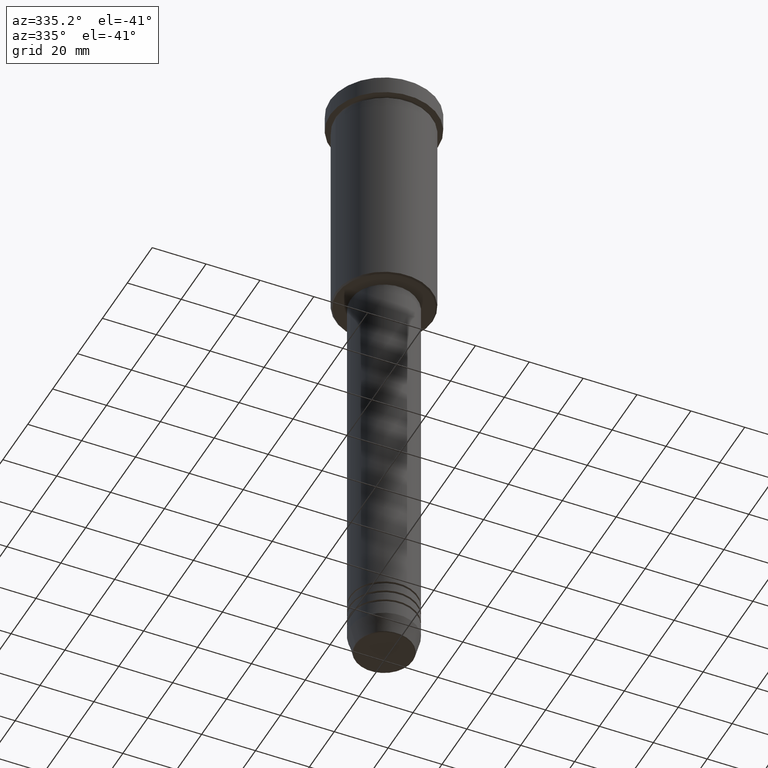
[diagram: clean part render]
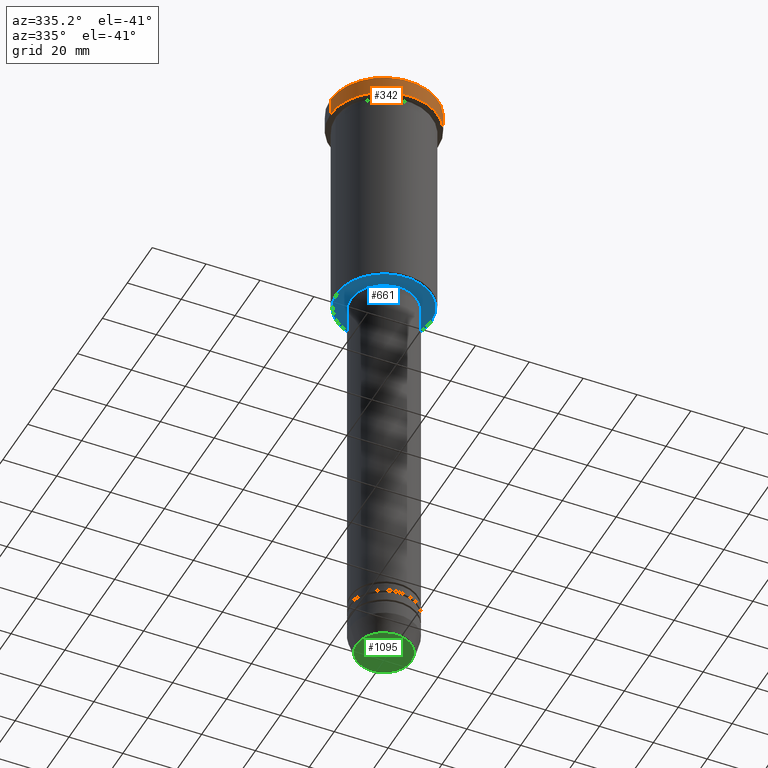
[diagram: same view with three faces highlighted in distinct colors, each labeled with its STEP entity id]
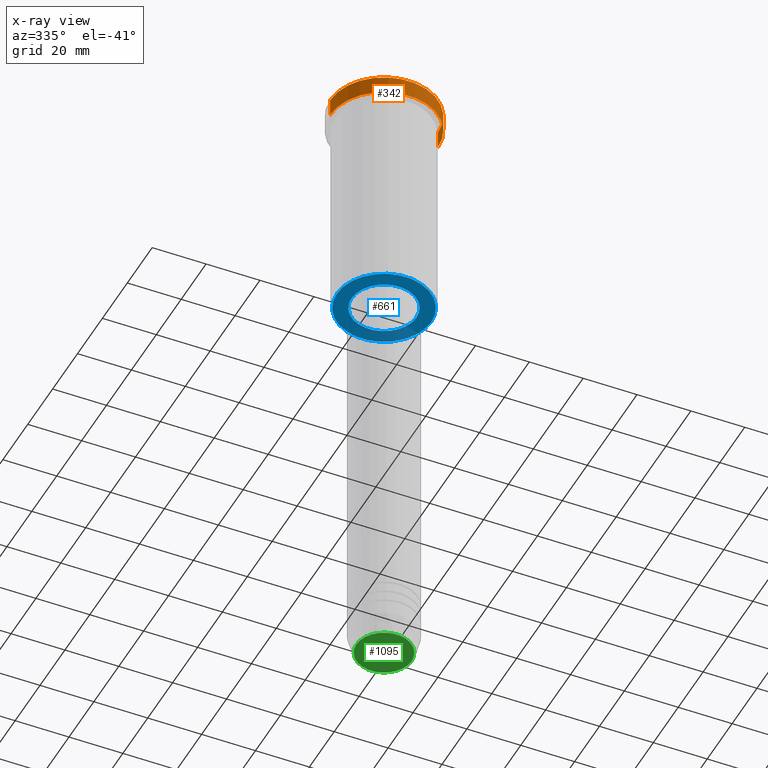
[diagram: x-ray of the same camera — body ghosted, the three highlighted faces saturated]
A machine part, auxiliary view with three faces highlighted in distinct colors.
The next image is the same camera in x-ray (body ghosted, the three faces saturated) — at least one of them is partly hidden behind the body in this view.
Their STEP definitions:

[orange] entity #342 — the highlighted cylindrical surface (partial cylindrical patch) has radius 20 mm, axis along (-0, -0, 1).
#9 = EDGE_CURVE ( 'NONE', #825, #329, #397, .T. ) ;
#28 = CARTESIAN_POINT ( 'NONE',  ( 0.000000000000000000, 0.000000000000000000, 0.000000000000000000 ) ) ;
#32 = EDGE_CURVE ( 'NONE', #276, #329, #197, .T. ) ;
#135 = DIRECTION ( 'NONE',  ( 0.000000000000000000, 0.000000000000000000, -1.000000000000000000 ) ) ;
#197 = CIRCLE ( 'NONE', #1007, 20.00000000000000000 ) ;
#276 = VERTEX_POINT ( 'NONE', #341 ) ;
#278 = CARTESIAN_POINT ( 'NONE',  ( -20.00000000000000000, 2.449293598294706513E-15, -0.4999999999999692468 ) ) ;
#296 = FACE_OUTER_BOUND ( 'NONE', #1050, .T. ) ;
#329 = VERTEX_POINT ( 'NONE', #278 ) ;
#341 = CARTESIAN_POINT ( 'NONE',  ( 20.00000000000000000, 0.000000000000000000, -0.4999999999999692468 ) ) ;
#342 = ADVANCED_FACE ( 'NONE', ( #296 ), #900, .T. ) ;
#350 = ORIENTED_EDGE ( 'NONE', *, *, #578, .T. ) ;
#362 = DIRECTION ( 'NONE',  ( 1.000000000000000000, 0.000000000000000000, 0.000000000000000000 ) ) ;
#378 = DIRECTION ( 'NONE',  ( 1.000000000000000000, 0.000000000000000000, 0.000000000000000000 ) ) ;
#396 = DIRECTION ( 'NONE',  ( -0.000000000000000000, -0.000000000000000000, 1.000000000000000000 ) ) ;
#397 = LINE ( 'NONE', #1111, #496 ) ;
#401 = CIRCLE ( 'NONE', #423, 20.00000000000000000 ) ;
#423 = AXIS2_PLACEMENT_3D ( 'NONE', #918, #651, #378 ) ;
#428 = EDGE_CURVE ( 'NONE', #584, #276, #1078, .T. ) ;
#496 = VECTOR ( 'NONE', #1024, 1000.000000000000000 ) ;
#543 = CARTESIAN_POINT ( 'NONE',  ( 20.00000000000000000, 0.000000000000000000, 0.000000000000000000 ) ) ;
#578 = EDGE_CURVE ( 'NONE', #825, #584, #401, .T. ) ;
#584 = VERTEX_POINT ( 'NONE', #749 ) ;
#624 = CARTESIAN_POINT ( 'NONE',  ( -20.00000000000000000, 2.449293598294706513E-15, -6.999999999999995559 ) ) ;
#651 = DIRECTION ( 'NONE',  ( -0.000000000000000000, -0.000000000000000000, 1.000000000000000000 ) ) ;
#670 = DIRECTION ( 'NONE',  ( 1.000000000000000000, 0.000000000000000000, 0.000000000000000000 ) ) ;
#749 = CARTESIAN_POINT ( 'NONE',  ( 20.00000000000000000, 0.000000000000000000, -6.999999999999995559 ) ) ;
#758 = CARTESIAN_POINT ( 'NONE',  ( 0.000000000000000000, 0.000000000000000000, -0.4999999999999692468 ) ) ;
#791 = ORIENTED_EDGE ( 'NONE', *, *, #32, .T. ) ;
#825 = VERTEX_POINT ( 'NONE', #624 ) ;
#900 = CYLINDRICAL_SURFACE ( 'NONE', #1183, 20.00000000000000000 ) ;
#904 = DIRECTION ( 'NONE',  ( -0.000000000000000000, -0.000000000000000000, 1.000000000000000000 ) ) ;
#918 = CARTESIAN_POINT ( 'NONE',  ( 0.000000000000000000, 0.000000000000000000, -6.999999999999995559 ) ) ;
#982 = ORIENTED_EDGE ( 'NONE', *, *, #9, .F. ) ;
#1007 = AXIS2_PLACEMENT_3D ( 'NONE', #758, #135, #670 ) ;
#1009 = VECTOR ( 'NONE', #904, 1000.000000000000000 ) ;
#1024 = DIRECTION ( 'NONE',  ( -0.000000000000000000, -0.000000000000000000, 1.000000000000000000 ) ) ;
#1050 = EDGE_LOOP ( 'NONE', ( #982, #350, #1082, #791 ) ) ;
#1078 = LINE ( 'NONE', #543, #1009 ) ;
#1082 = ORIENTED_EDGE ( 'NONE', *, *, #428, .T. ) ;
#1111 = CARTESIAN_POINT ( 'NONE',  ( -20.00000000000000000, 2.449293598294706513E-15, 0.000000000000000000 ) ) ;
#1183 = AXIS2_PLACEMENT_3D ( 'NONE', #28, #396, #362 ) ;

[blue] entity #661 — the highlighted planar face has unit normal (0, 0, -1).
#31 = DIRECTION ( 'NONE',  ( -0.000000000000000000, -0.000000000000000000, 1.000000000000000000 ) ) ;
#54 = EDGE_LOOP ( 'NONE', ( #238, #945 ) ) ;
#156 = VERTEX_POINT ( 'NONE', #320 ) ;
#160 = DIRECTION ( 'NONE',  ( 0.000000000000000000, 0.000000000000000000, -1.000000000000000000 ) ) ;
#195 = EDGE_CURVE ( 'NONE', #156, #199, #1139, .T. ) ;
#199 = VERTEX_POINT ( 'NONE', #686 ) ;
#238 = ORIENTED_EDGE ( 'NONE', *, *, #514, .T. ) ;
#255 = CIRCLE ( 'NONE', #273, 12.00000000000000000 ) ;
#273 = AXIS2_PLACEMENT_3D ( 'NONE', #648, #626, #575 ) ;
#308 = CIRCLE ( 'NONE', #688, 17.49999999999993250 ) ;
#312 = FACE_BOUND ( 'NONE', #54, .T. ) ;
#320 = CARTESIAN_POINT ( 'NONE',  ( 17.49999999999993250, 0.000000000000000000, -86.00000000000000000 ) ) ;
#354 = VERTEX_POINT ( 'NONE', #1114 ) ;
#355 = DIRECTION ( 'NONE',  ( -1.000000000000000000, 0.000000000000000000, -0.000000000000000000 ) ) ;
#416 = CARTESIAN_POINT ( 'NONE',  ( 0.000000000000000000, 0.000000000000000000, -86.00000000000000000 ) ) ;
#418 = DIRECTION ( 'NONE',  ( -1.000000000000000000, 0.000000000000000000, 0.000000000000000000 ) ) ;
#421 = AXIS2_PLACEMENT_3D ( 'NONE', #416, #532, #537 ) ;
#514 = EDGE_CURVE ( 'NONE', #354, #972, #1141, .T. ) ;
#532 = DIRECTION ( 'NONE',  ( 0.000000000000000000, 0.000000000000000000, -1.000000000000000000 ) ) ;
#537 = DIRECTION ( 'NONE',  ( -1.000000000000000000, 0.000000000000000000, 0.000000000000000000 ) ) ;
#538 = CARTESIAN_POINT ( 'NONE',  ( 0.000000000000000000, 18.00000000000000000, -86.00000000000000000 ) ) ;
#575 = DIRECTION ( 'NONE',  ( 1.000000000000000000, 0.000000000000000000, 0.000000000000000000 ) ) ;
#607 = DIRECTION ( 'NONE',  ( 1.000000000000000000, 0.000000000000000000, 0.000000000000000000 ) ) ;
#626 = DIRECTION ( 'NONE',  ( -0.000000000000000000, -0.000000000000000000, 1.000000000000000000 ) ) ;
#628 = ORIENTED_EDGE ( 'NONE', *, *, #966, .T. ) ;
#637 = AXIS2_PLACEMENT_3D ( 'NONE', #538, #160, #355 ) ;
#648 = CARTESIAN_POINT ( 'NONE',  ( 0.000000000000000000, 0.000000000000000000, -86.00000000000000000 ) ) ;
#661 = ADVANCED_FACE ( 'NONE', ( #1126, #312 ), #675, .T. ) ;
#675 = PLANE ( 'NONE',  #637 ) ;
#686 = CARTESIAN_POINT ( 'NONE',  ( -17.49999999999993250, 2.173748068486548091E-15, -86.00000000000000000 ) ) ;
#688 = AXIS2_PLACEMENT_3D ( 'NONE', #788, #1134, #418 ) ;
#788 = CARTESIAN_POINT ( 'NONE',  ( 0.000000000000000000, 0.000000000000000000, -86.00000000000000000 ) ) ;
#848 = CARTESIAN_POINT ( 'NONE',  ( 0.000000000000000000, 0.000000000000000000, -86.00000000000000000 ) ) ;
#876 = AXIS2_PLACEMENT_3D ( 'NONE', #848, #31, #607 ) ;
#945 = ORIENTED_EDGE ( 'NONE', *, *, #1013, .T. ) ;
#966 = EDGE_CURVE ( 'NONE', #199, #156, #308, .T. ) ;
#972 = VERTEX_POINT ( 'NONE', #1060 ) ;
#988 = EDGE_LOOP ( 'NONE', ( #1073, #628 ) ) ;
#1013 = EDGE_CURVE ( 'NONE', #972, #354, #255, .T. ) ;
#1060 = CARTESIAN_POINT ( 'NONE',  ( -12.00000000000000000, 1.469576158976823947E-15, -86.00000000000000000 ) ) ;
#1073 = ORIENTED_EDGE ( 'NONE', *, *, #195, .T. ) ;
#1114 = CARTESIAN_POINT ( 'NONE',  ( 12.00000000000000000, 0.000000000000000000, -86.00000000000000000 ) ) ;
#1126 = FACE_OUTER_BOUND ( 'NONE', #988, .T. ) ;
#1134 = DIRECTION ( 'NONE',  ( 0.000000000000000000, 0.000000000000000000, -1.000000000000000000 ) ) ;
#1139 = CIRCLE ( 'NONE', #421, 17.49999999999993250 ) ;
#1141 = CIRCLE ( 'NONE', #876, 12.00000000000000000 ) ;

[green] entity #1095 — the highlighted planar face has unit normal (0, -0, 1).
#39 = FACE_OUTER_BOUND ( 'NONE', #998, .T. ) ;
#102 = VERTEX_POINT ( 'NONE', #751 ) ;
#118 = DIRECTION ( 'NONE',  ( 1.000000000000000000, 0.000000000000000000, 0.000000000000000000 ) ) ;
#142 = AXIS2_PLACEMENT_3D ( 'NONE', #1020, #769, #214 ) ;
#209 = AXIS2_PLACEMENT_3D ( 'NONE', #1106, #455, #118 ) ;
#214 = DIRECTION ( 'NONE',  ( 1.000000000000000000, 0.000000000000000000, 0.000000000000000000 ) ) ;
#217 = ORIENTED_EDGE ( 'NONE', *, *, #944, .T. ) ;
#283 = EDGE_CURVE ( 'NONE', #102, #817, #968, .T. ) ;
#300 = PLANE ( 'NONE',  #142 ) ;
#334 = CARTESIAN_POINT ( 'NONE',  ( 0.000000000000000000, 0.000000000000000000, -240.0000000000000000 ) ) ;
#455 = DIRECTION ( 'NONE',  ( 0.000000000000000000, 0.000000000000000000, -1.000000000000000000 ) ) ;
#478 = ORIENTED_EDGE ( 'NONE', *, *, #283, .T. ) ;
#501 = CARTESIAN_POINT ( 'NONE',  ( -10.24069215899266538, 1.283696036640842967E-15, -240.0000000000000000 ) ) ;
#751 = CARTESIAN_POINT ( 'NONE',  ( 10.24069215899266538, 0.000000000000000000, -240.0000000000000000 ) ) ;
#769 = DIRECTION ( 'NONE',  ( 0.000000000000000000, -0.000000000000000000, 1.000000000000000000 ) ) ;
#817 = VERTEX_POINT ( 'NONE', #501 ) ;
#902 = AXIS2_PLACEMENT_3D ( 'NONE', #334, #1055, #970 ) ;
#944 = EDGE_CURVE ( 'NONE', #817, #102, #971, .T. ) ;
#968 = CIRCLE ( 'NONE', #209, 10.24069215899266538 ) ;
#970 = DIRECTION ( 'NONE',  ( 1.000000000000000000, 0.000000000000000000, 0.000000000000000000 ) ) ;
#971 = CIRCLE ( 'NONE', #902, 10.24069215899266538 ) ;
#998 = EDGE_LOOP ( 'NONE', ( #478, #217 ) ) ;
#1020 = CARTESIAN_POINT ( 'NONE',  ( 0.000000000000000000, 0.000000000000000000, -240.0000000000000000 ) ) ;
#1055 = DIRECTION ( 'NONE',  ( 0.000000000000000000, 0.000000000000000000, -1.000000000000000000 ) ) ;
#1095 = ADVANCED_FACE ( 'NONE', ( #39 ), #300, .F. ) ;
#1106 = CARTESIAN_POINT ( 'NONE',  ( 0.000000000000000000, 0.000000000000000000, -240.0000000000000000 ) ) ;